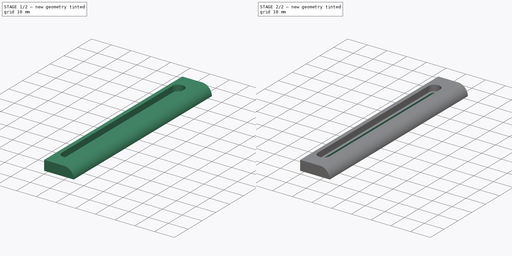
[diagram: build sequence overview — one tinted view per stage of 2, left to right]
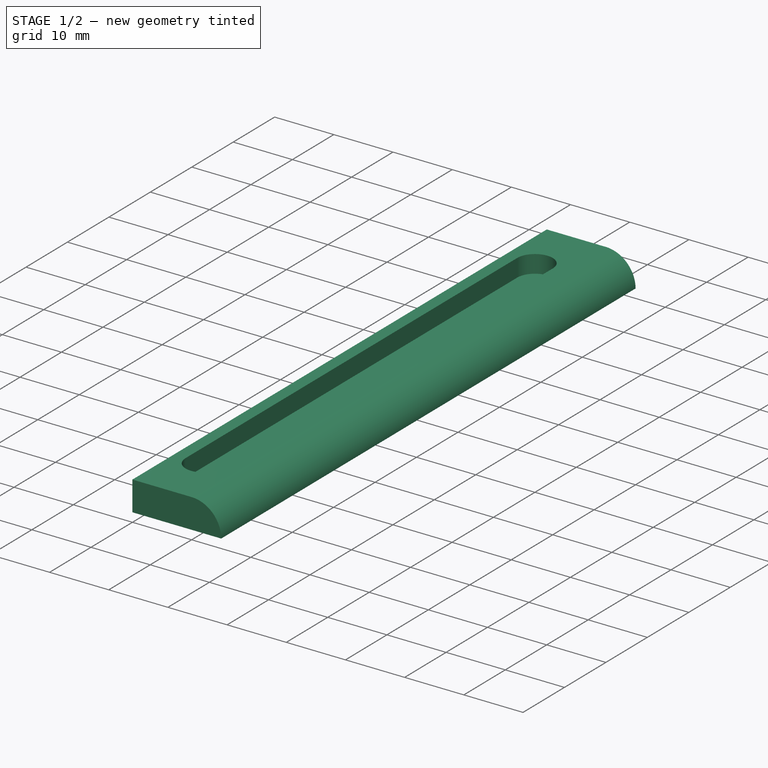
[diagram: stage 1 of 2 — iso view after this stage's code; geometry added in this stage tinted green]
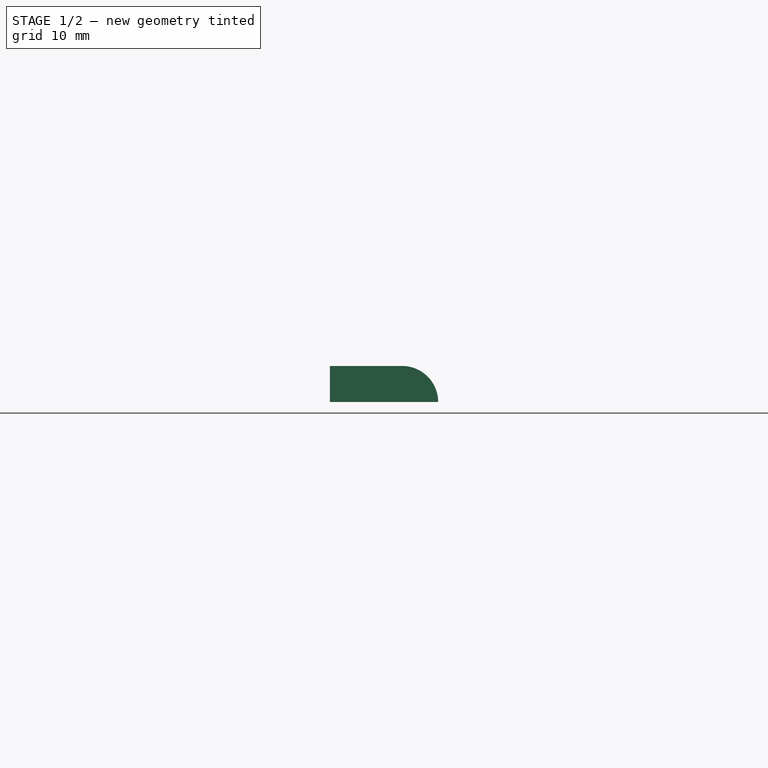
[diagram: stage 1 of 2 — front view after this stage's code; geometry added in this stage tinted green]
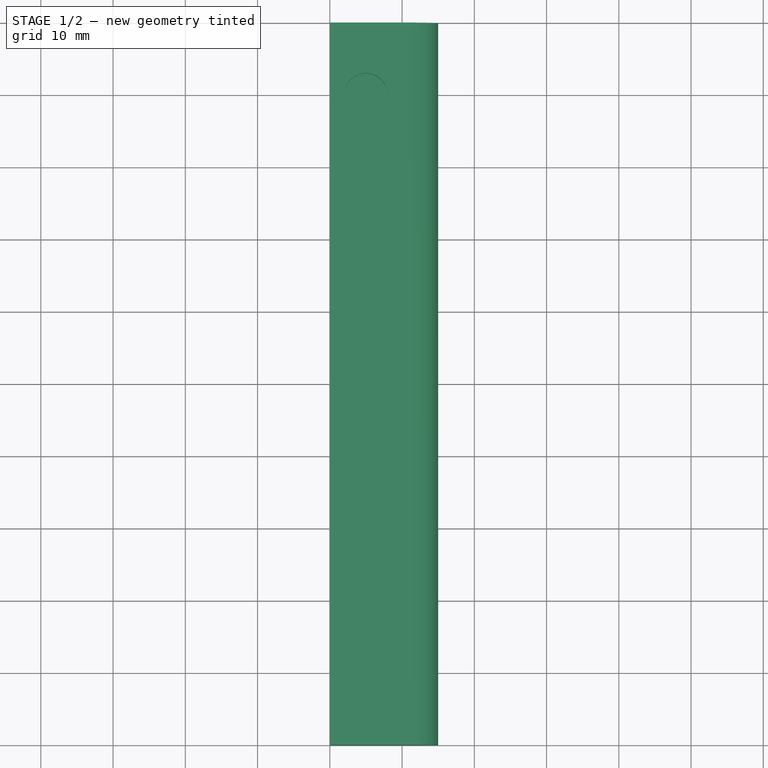
[diagram: stage 1 of 2 — top view after this stage's code; geometry added in this stage tinted green]
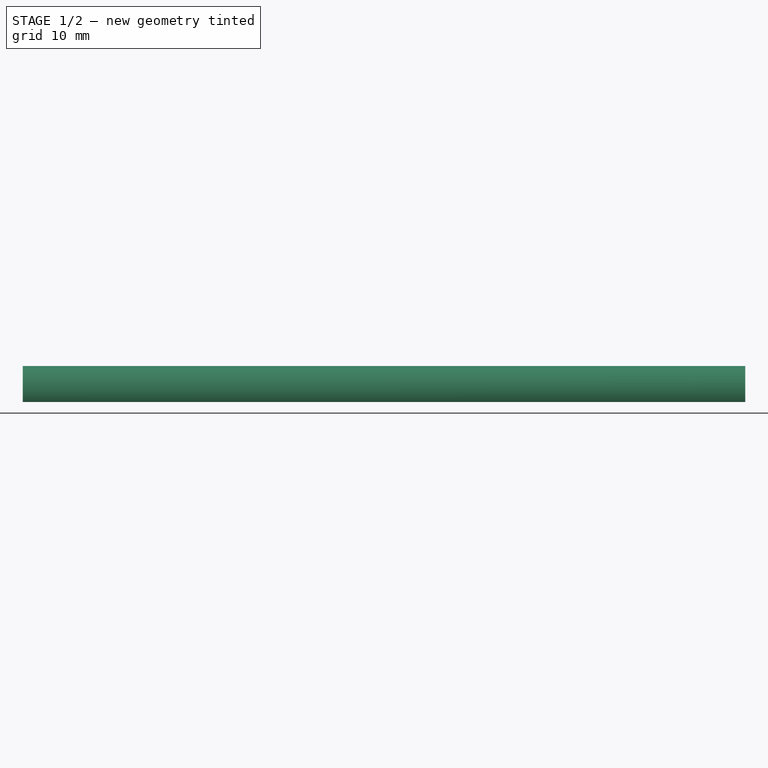
[diagram: stage 1 of 2 — right view after this stage's code; geometry added in this stage tinted green]
FCSTD DOCUMENT
Label: YCableSupportArm
objects: Sketcher::SketchObject×3, PartDesign::Pocket×2, PartDesign::Pad×1
note: 7 computed .brp shape members not serialized (recipe doc carries the construction recipe); baked Part::Feature solids carry a one-line shape summary decoded from their .brp

FEATURE [Sketcher::SketchObject] Sketch
  Placement = pos=(0,0,0) rot=(-1,0,0;4.71239rad)
  sketch-geometry (4):
    g0: LineSegment StartX=0 StartY=0 StartZ=0 EndX=0 EndY=5 EndZ=0
    g1: LineSegment StartX=0 StartY=5 StartZ=0 EndX=10 EndY=5 EndZ=0
    g2: LineSegment StartX=0 StartY=0 StartZ=0 EndX=15 EndY=0 EndZ=0
    g3: ArcOfCircle CenterX=9.99998 CenterY=0 CenterZ=0 NormalX=0 NormalY=0 NormalZ=1 Radius=5 StartAngle=0 EndAngle=1.57079
  constraints (13):
    c: Vertical(g0)
    c: Coincident(g0,g1)
    c: Horizontal(g1)
    c: Coincident(g2,g0)
    c: Horizontal(g2)
    c: Coincident(g3,g1)
    c: Tangent(g3,g1)
    c: DistanceX(g0) = 0
    c: DistanceY(g0) = 0
    c: DistanceX(g1) = 10
    c: Coincident(g2,g3)
    c: PointOnObject(g3,g2)
    c: DistanceY(g0) = 5
FEATURE [PartDesign::Pad] Pad
  Length = 100
  MirroredExtent = false
  Sketch = -> Sketch
FEATURE [Sketcher::SketchObject] Sketch001
  Placement = pos=(0,0,5) rot=(0,0,1;0rad)
  Support = -> Pad [Face2]
  sketch-geometry (8):
    g0: ArcOfCircle CenterX=5 CenterY=-10 CenterZ=0 NormalX=0 NormalY=0 NormalZ=1 Radius=3 StartAngle=0 EndAngle=3.14159
    g1: ArcOfCircle CenterX=5 CenterY=-90 CenterZ=0 NormalX=0 NormalY=0 NormalZ=1 Radius=3 StartAngle=3.14159 EndAngle=6.28319
    g2: LineSegment StartX=2 StartY=-10 StartZ=0 EndX=2 EndY=-90 EndZ=0
    g3: LineSegment StartX=8 StartY=-10 StartZ=0 EndX=8 EndY=-90 EndZ=0
    g4: LineSegment [constr] StartX=2 StartY=-10 StartZ=0 EndX=5 EndY=-10 EndZ=0
    g5: LineSegment [constr] StartX=8 StartY=-10 StartZ=0 EndX=5 EndY=-10 EndZ=0
    g6: LineSegment [constr] StartX=8 StartY=-90 StartZ=0 EndX=5 EndY=-90 EndZ=0
    g7: LineSegment [constr] StartX=5 StartY=-90 StartZ=0 EndX=2 EndY=-90 EndZ=0
  constraints (22):
    c: Vertical(g2)
    c: Coincident(g3,g0)
    c: Coincident(g3,g1)
    c: Vertical(g3)
    c: Coincident(g1,g2)
    c: Coincident(g0,g2)
    c: Coincident(g4,g0)
    c: Coincident(g4,g0)
    c: Horizontal(g4)
    c: Coincident(g5,g0)
    c: Coincident(g5,g0)
    c: Horizontal(g5)
    c: Coincident(g6,g1)
    c: Coincident(g6,g1)
    c: Coincident(g7,g1)
    c: Coincident(g7,g1)
    c: Horizontal(g7)
    c: Horizontal(g6)
    c: DistanceX(g1,g1) = 6
    c: DistanceX(g0) = 5
    c: DistanceY(g0) = -10
    c: DistanceY(g0,g1) = -80
FEATURE [PartDesign::Pocket] Pocket
  Length = 3
  Sketch = -> Sketch001
  Type = 0
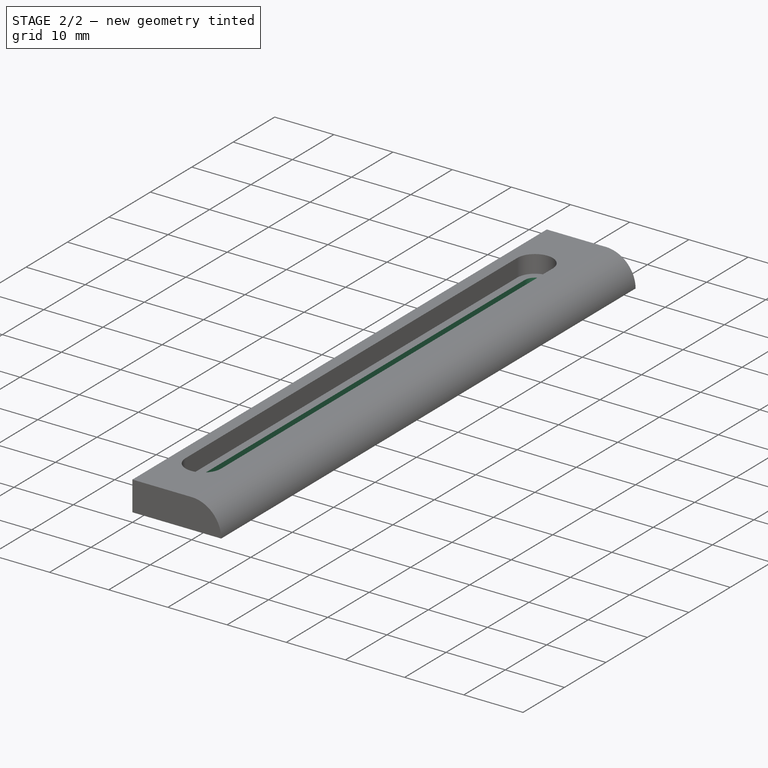
[diagram: stage 2 of 2 — iso view after this stage's code; geometry added in this stage tinted green]
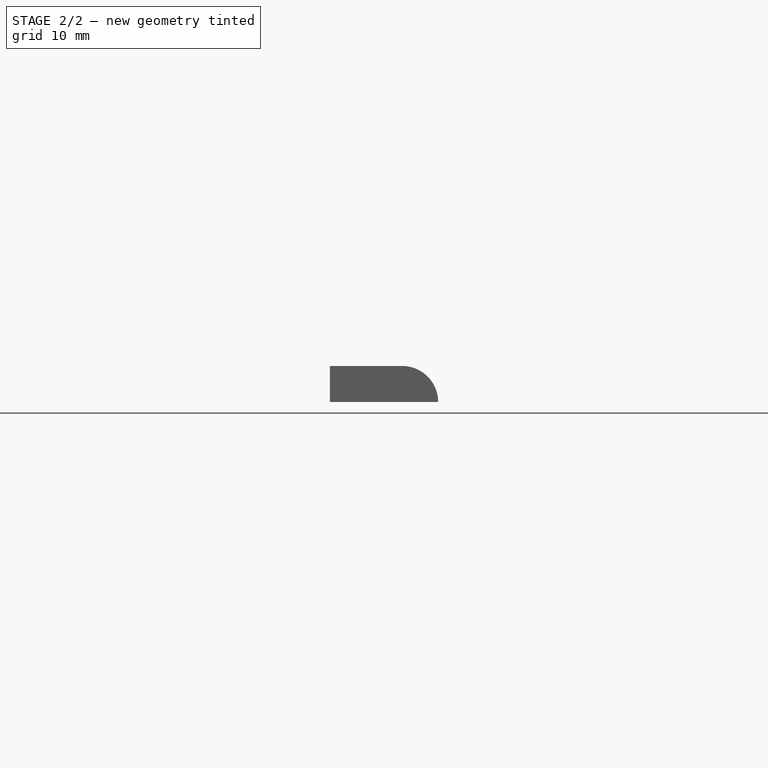
[diagram: stage 2 of 2 — front view after this stage's code; geometry added in this stage tinted green]
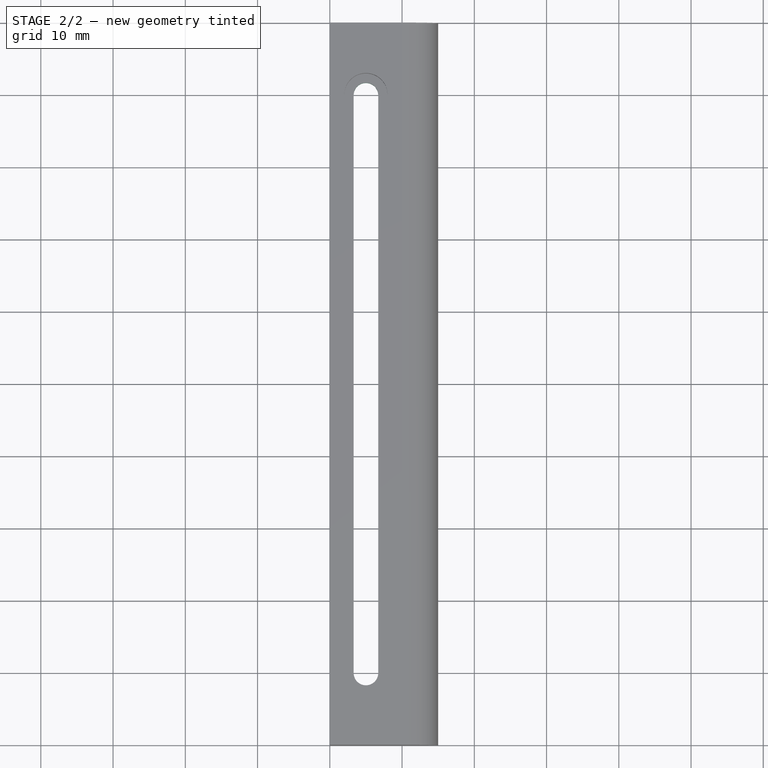
[diagram: stage 2 of 2 — top view after this stage's code; geometry added in this stage tinted green]
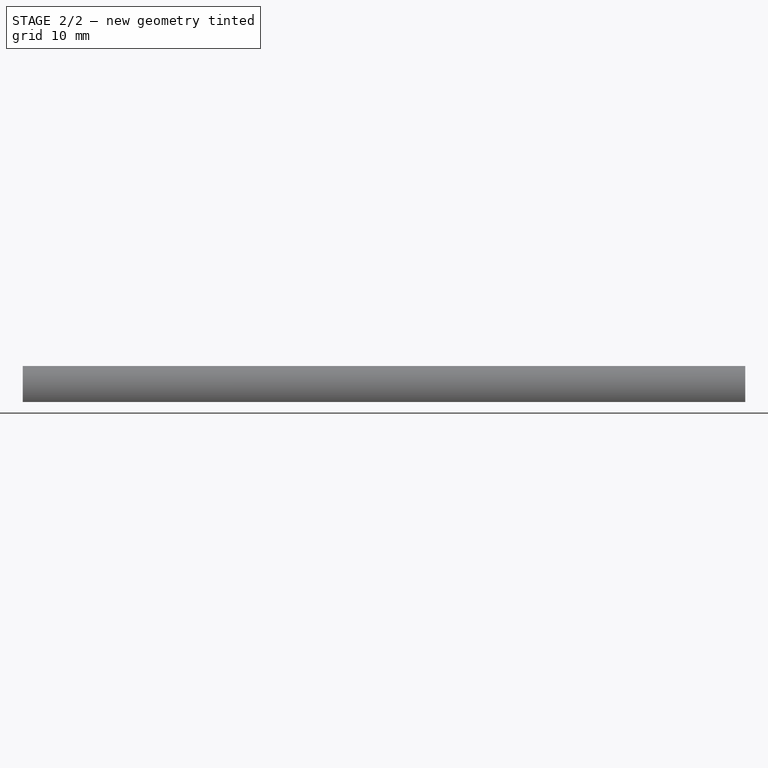
[diagram: stage 2 of 2 — right view after this stage's code; geometry added in this stage tinted green]
FEATURE [Sketcher::SketchObject] Sketch002
  Placement = pos=(0,0,2) rot=(0,0,1;0rad)
  Support = -> Pocket [Face11]
  sketch-geometry (8):
    g0: LineSegment [constr] StartX=3.3 StartY=-10 StartZ=0 EndX=5 EndY=-10 EndZ=0
    g1: LineSegment [constr] StartX=5 StartY=-10 StartZ=0 EndX=6.7 EndY=-10 EndZ=0
    g2: LineSegment StartX=6.7 StartY=-10 StartZ=0 EndX=6.7 EndY=-90 EndZ=0
    g3: LineSegment [constr] StartX=6.7 StartY=-90 StartZ=0 EndX=5 EndY=-90 EndZ=0
    g4: LineSegment [constr] StartX=5 StartY=-90 StartZ=0 EndX=3.3 EndY=-90 EndZ=0
    g5: LineSegment StartX=3.3 StartY=-90 StartZ=0 EndX=3.3 EndY=-10 EndZ=0
    g6: ArcOfCircle CenterX=5 CenterY=-10 CenterZ=0 NormalX=0 NormalY=0 NormalZ=1 Radius=1.7 StartAngle=0 EndAngle=3.14159
    g7: ArcOfCircle CenterX=5 CenterY=-90 CenterZ=0 NormalX=0 NormalY=0 NormalZ=1 Radius=1.7 StartAngle=3.14159 EndAngle=6.28319
  constraints (22):
    c: Horizontal(g0)
    c: Coincident(g0,g1)
    c: Horizontal(g1)
    c: Coincident(g1,g2)
    c: Vertical(g2)
    c: Coincident(g2,g3)
    c: Horizontal(g3)
    c: Coincident(g3,g4)
    c: Horizontal(g4)
    c: Coincident(g4,g5)
    c: Coincident(g5,g0)
    c: Vertical(g5)
    c: Coincident(g6,g0)
    c: Coincident(g6,g0)
    c: Coincident(g6,g1)
    c: Coincident(g7,g3)
    c: Coincident(g7,g4)
    c: Coincident(g7,g2)
    c: DistanceX(g0,g1) = 3.4
    c: DistanceX(g0) = 5
    c: DistanceY(g0) = -10
    c: DistanceY(g0,g3) = -80
FEATURE [PartDesign::Pocket] Pocket001
  Length = 3
  Sketch = -> Sketch002
  Type = 0
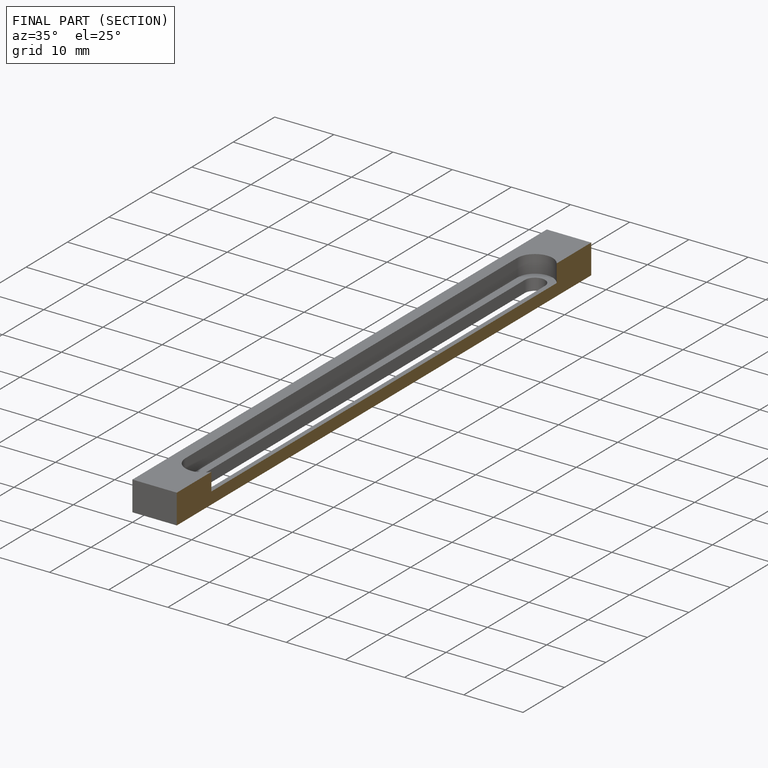
[diagram: finished part — half-section view (interior)]
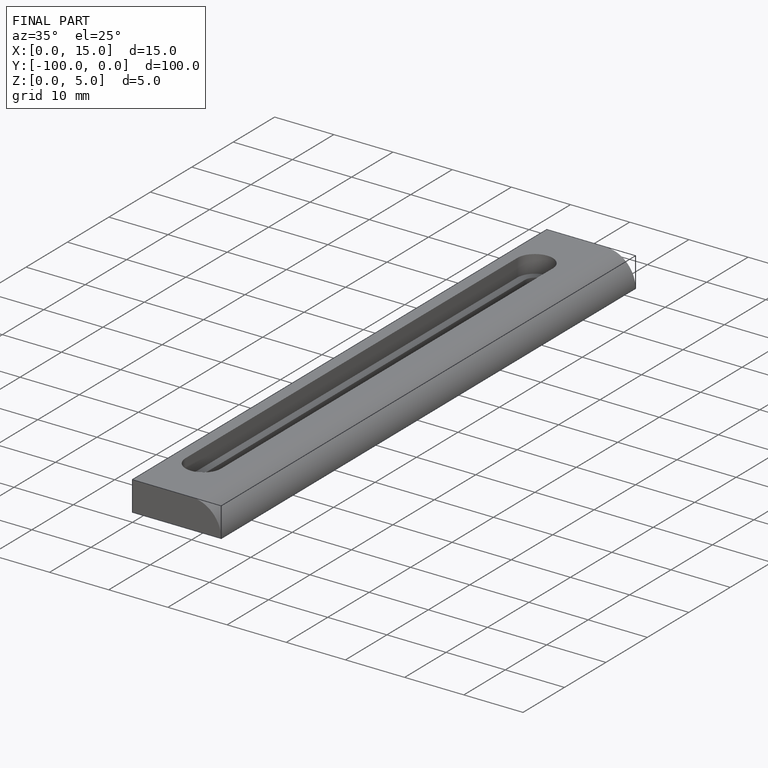
[diagram: finished part — iso view with bounding-box wireframe]
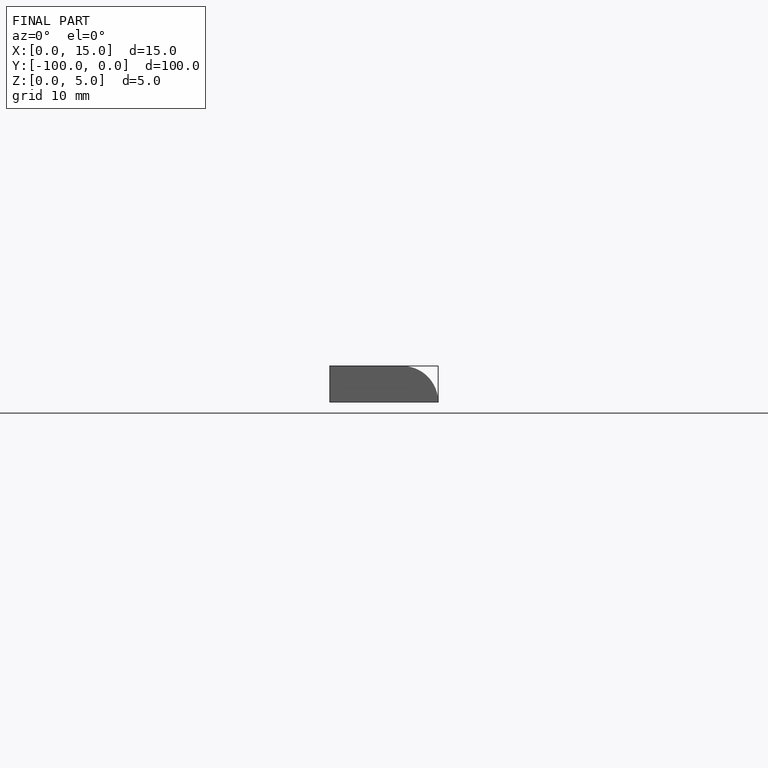
[diagram: finished part — front view with bounding-box wireframe]
